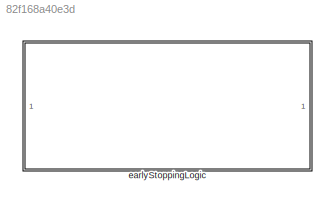
MODEL slx_82f168a40e3d
KIND library
CONFIG AbsTol = auto
CONFIG EnableMultiTasking = off
CONFIG FixedStep = auto
CONFIG MaxStep = auto
CONFIG MinStep = auto
CONFIG RelTol = 1e-3
CONFIG SampleTimeConstraint = Unconstrained
CONFIG SolverName = VariableStepAuto
CONFIG StartTime = 0.0
CONFIG StopTime = 10.0
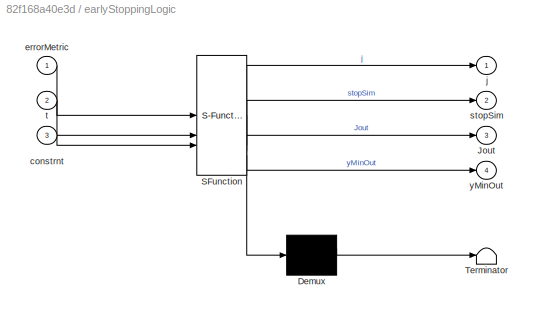
BLOCK [SubSystem] earlyStoppingLogic
  ErrorFcn = Stateflow.Translate.translate
  PermitHierarchicalResolution = ExplicitOnly
  SFBlockType = MATLAB Function
  TreatAsAtomicUnit = on
BLOCK [Demux] earlyStoppingLogic/ Demux 
  Outputs = 1
BLOCK [S-Function] earlyStoppingLogic/ SFunction 
  EnableBusSupport = on
  FunctionName = sf_sfun
  Parameters = ESSettings,simStopTheshold
  PortCounts = [3 5]
  SFcnIsStateOwnerBlock = off
  SFunctionDeploymentMode = off
  Tag = Stateflow S-Function 2
BLOCK [Terminator] earlyStoppingLogic/ Terminator 
BLOCK [Outport] earlyStoppingLogic/Jout
  Port = 3
BLOCK [Inport] earlyStoppingLogic/constrnt
  Port = 3
BLOCK [Inport] earlyStoppingLogic/errorMetric
BLOCK [Outport] earlyStoppingLogic/j
BLOCK [Outport] earlyStoppingLogic/stopSim
  Port = 2
BLOCK [Inport] earlyStoppingLogic/t
  Port = 2
BLOCK [Outport] earlyStoppingLogic/yMinOut
  Port = 4
CHART earlyStoppingLogic states=1 transitions=1
  STATE_LABEL 'eML_blk_kernel()'
  STATE_LABEL 'SCRIPT:\nfunction [j,stopSim,Jout,yMinOut] = fcn(errorMetric,t, ESSettings, constrnt, simStopTheshold)\npersistent J\npersistent NoOfCalls\n\n\ntstart = ESSettings.tstart;\ntend   = ESSettings.tend;\n\nif isempty(J)\n    J = 0;\n    NoOfCalls =1;\nend\nif length(simStopTheshold) == 1\n    ymin = simStopTheshold;\nelse\n    ymin = simStopTheshold(NoOfCalls);\nend\nj = 0;\n\nif tstart <= t && t <= tend\n    j = errorMet...<+190ch>'
CHART  states=0 transitions=0
